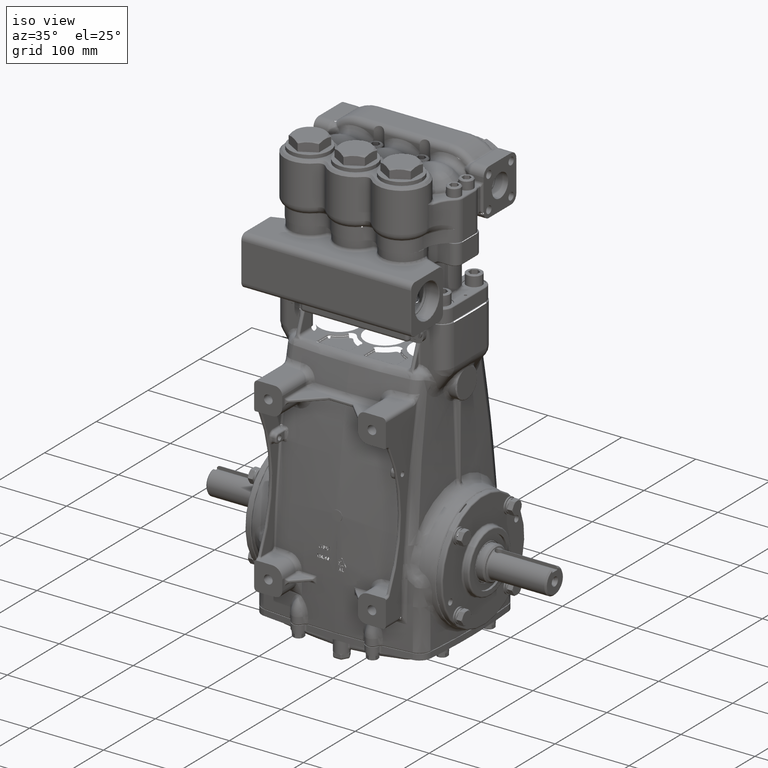
[diagram: clean part render]
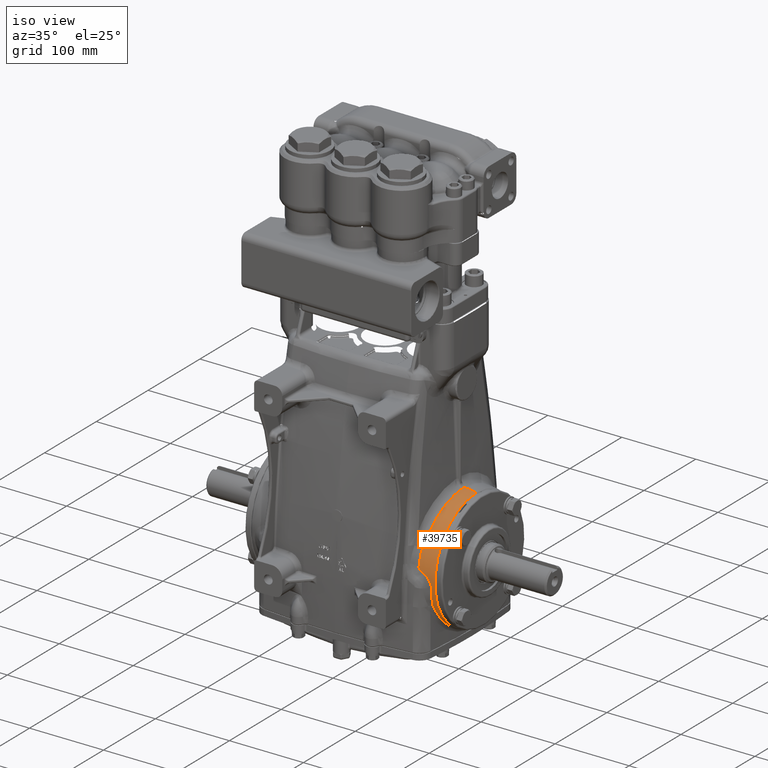
[diagram: same view with one face highlighted and labeled with its STEP entity id]
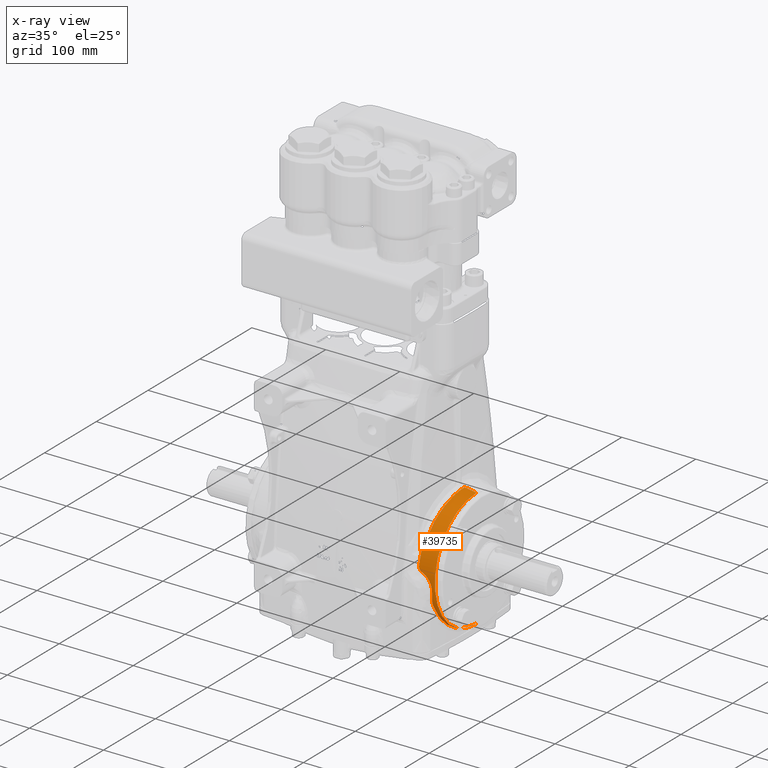
[diagram: x-ray of the same camera — body ghosted, the highlighted face saturated]
A machine part, iso view. The second image highlights one B-rep face of the part: STEP entity #39735.
The next image is the same camera in x-ray: the body ghosted, the highlighted face saturated — about 0% of this face is hidden behind the body in this view.
In plain terms, the highlighted toroidal blend (fillet) surface has major radius 710.174 mm and minor (blend) radius 800 mm.
Its self-contained STEP definition (entity closure, byte-faithful):
#765 = CARTESIAN_POINT ( 'NONE',  ( 4.059840737327628624, -3.014675423165702028, 1.277885004256982260 ) ) ;
#974 = CARTESIAN_POINT ( 'NONE',  ( 4.795392943022132037, -0.9920313528584013829, -3.013406244147627255 ) ) ;
#1049 = CARTESIAN_POINT ( 'NONE',  ( 4.476645519390706873, -3.208994383556206920, 0.2276715050428013698 ) ) ;
#4272 = CARTESIAN_POINT ( 'NONE',  ( 4.671995195232788944, -2.817595301799574514, -1.491509972633686898 ) ) ;
#4677 = ORIENTED_EDGE ( 'NONE', *, *, #109055, .F. ) ;
#4768 = CARTESIAN_POINT ( 'NONE',  ( -1.050220729719372817E-16, 0.0000000000000000000, 27.95960753795100473 ) ) ;
#5383 = VERTEX_POINT ( 'NONE', #26554 ) ;
#6572 = VERTEX_POINT ( 'NONE', #43786 ) ;
#8972 = ORIENTED_EDGE ( 'NONE', *, *, #74583, .F. ) ;
#10016 = B_SPLINE_CURVE_WITH_KNOTS ( 'NONE', 3,
 ( #108400, #45343, #87630, #129891, #34923, #77213, #119492, #24531 ),
 .UNSPECIFIED., .F., .F.,
 ( 4, 2, 2, 4 ),
 ( 0.0000000000000000000, 0.5000000000000000000, 0.7499999999999998890, 1.000000000000000000 ),
 .UNSPECIFIED. ) ;
#10351 = ORIENTED_EDGE ( 'NONE', *, *, #42324, .F. ) ;
#10721 = CARTESIAN_POINT ( 'NONE',  ( 4.240305217706549890, -0.2533055434038216092, 3.242258551654292553 ) ) ;
#11155 = CARTESIAN_POINT ( 'NONE',  ( 4.074960399868632344, -3.143860997543816982, 0.9148230346869269392 ) ) ;
#11360 = CARTESIAN_POINT ( 'NONE',  ( 4.811355340674883685, -0.2864910433851791671, -3.157124972228495086 ) ) ;
#11450 = CARTESIAN_POINT ( 'NONE',  ( 4.701623159952063702, -3.183729317627611355, -0.1365620709503548025 ) ) ;
#12034 = CARTESIAN_POINT ( 'NONE',  ( 4.671995195232788944, -2.817595301799574514, -1.491509972633686898 ) ) ;
#13006 = CARTESIAN_POINT ( 'NONE',  ( 4.240991282790828265, 4.693753063019659436E-11, 3.249621495888693978 ) ) ;
#14915 = CIRCLE ( 'NONE', #92434, 3.156962035488045437 ) ;
#19322 = ORIENTED_EDGE ( 'NONE', *, *, #54480, .F. ) ;
#21151 = CARTESIAN_POINT ( 'NONE',  ( 4.230583354813282959, -0.8709274565133807711, 3.134715635904268716 ) ) ;
#22456 = CARTESIAN_POINT ( 'NONE',  ( 4.701454750326896637, -2.506536445759398823, -1.967938369618047689 ) ) ;
#22626 = CARTESIAN_POINT ( 'NONE',  ( 4.146795280029016872, -2.739778042975806294, 1.784677835696039105 ) ) ;
#23155 = EDGE_CURVE ( 'NONE', #6572, #132223, #10016, .T. ) ;
#23341 = CARTESIAN_POINT ( 'NONE',  ( 5.568718060300463558E-15, 3.424064387676790698E-15, -27.95960753795100473 ) ) ;
#24011 = EDGE_CURVE ( 'NONE', #125979, #81088, #108869, .T. ) ;
#24531 = CARTESIAN_POINT ( 'NONE',  ( 4.068196207595590863, -3.204746991281274049, 0.6630307251519698131 ) ) ;
#26554 = CARTESIAN_POINT ( 'NONE',  ( 4.874534027504088485, -3.866163451790151959E-16, 3.156962035488049434 ) ) ;
#28631 = CARTESIAN_POINT ( 'NONE',  ( 4.712714316162791128, -3.132927912143915083, -0.5762095819734214253 ) ) ;
#30944 = VERTEX_POINT ( 'NONE', #80473 ) ;
#31579 = CARTESIAN_POINT ( 'NONE',  ( 4.216049932389253740, -1.346590706294731099, 2.963853008133497280 ) ) ;
#31878 = CARTESIAN_POINT ( 'NONE',  ( 4.812441923013113687, -1.481110120753864741E-07, -3.166625558008697272 ) ) ;
#32874 = CARTESIAN_POINT ( 'NONE',  ( 4.750268013655625232, -1.891747720313454284, -2.567528510850987988 ) ) ;
#34595 = ORIENTED_EDGE ( 'NONE', *, *, #124873, .F. ) ;
#34923 = CARTESIAN_POINT ( 'NONE',  ( 4.083574776814294260, -3.223938539801954217, 0.5512469625813745111 ) ) ;
#34987 = CARTESIAN_POINT ( 'NONE',  ( 4.713406592358675873, -3.169753574594053269, -0.2763370845249724650 ) ) ;
#37653 = ORIENTED_EDGE ( 'NONE', *, *, #24011, .F. ) ;
#38112 = DIRECTION ( 'NONE',  ( 1.730681562182256507E-16, 0.0000000000000000000, -1.000000000000000000 ) ) ;
#39033 = CARTESIAN_POINT ( 'NONE',  ( 4.635675277813445128, -3.027706349366337424, -1.018264804609938068 ) ) ;
#39735 = ADVANCED_FACE ( 'NONE', ( #103360 ), #118702, .T. ) ;
#39870 = CARTESIAN_POINT ( 'NONE',  ( 4.068196207595590863, -3.204746991281274049, 0.6630307251519698131 ) ) ;
#40046 = CIRCLE ( 'NONE', #117444, 31.49606299212598515 ) ;
#40324 = DIRECTION ( 'NONE',  ( 1.014631576207059362E-16, 0.0000000000000000000, -1.000000000000000000 ) ) ;
#41081 = B_SPLINE_CURVE_WITH_KNOTS ( 'NONE', 3,
 ( #63857, #106144, #11155, #53466, #95750, #765, #43101, #85355 ),
 .UNSPECIFIED., .F., .F.,
 ( 4, 2, 2, 4 ),
 ( 0.0000000000000000000, 0.4999999999999998890, 0.7499999999999998890, 1.000000000000000000 ),
 .UNSPECIFIED. ) ;
#41655 = CARTESIAN_POINT ( 'NONE',  ( 4.637802879207589157, -2.974517227941448461, -1.161161906720954651 ) ) ;
#42004 = CARTESIAN_POINT ( 'NONE',  ( 4.172413239403286234, -2.282509996542392283, 2.339665665247994131 ) ) ;
#42324 = EDGE_CURVE ( 'NONE', #107001, #67450, #55665, .T. ) ;
#43101 = CARTESIAN_POINT ( 'NONE',  ( 4.062115507457966679, -2.988712625195999451, 1.336762948548139152 ) ) ;
#43300 = CARTESIAN_POINT ( 'NONE',  ( 4.790303181778289954, -1.127149556421079390, -2.966354360120121214 ) ) ;
#43377 = CARTESIAN_POINT ( 'NONE',  ( 4.367240834308786290, -3.216752620590586087, 0.3194208989799462994 ) ) ;
#43786 = CARTESIAN_POINT ( 'NONE',  ( 4.241293303835878881, -3.226001539249478522, 0.3907520896382901676 ) ) ;
#43927 = ORIENTED_EDGE ( 'NONE', *, *, #23155, .F. ) ;
#45343 = CARTESIAN_POINT ( 'NONE',  ( 4.189968773506881128, -3.229987173090322017, 0.4158523669530884703 ) ) ;
#47089 = DIRECTION ( 'NONE',  ( 0.0000000000000000000, 1.000000000000000000, 0.0000000000000000000 ) ) ;
#52037 = CARTESIAN_POINT ( 'NONE',  ( 4.671995195232788944, -2.817595301799574514, -1.491509972633686898 ) ) ;
#53050 = CARTESIAN_POINT ( 'NONE',  ( 4.240991227555344523, -0.1264003216158212650, 3.249621060336789657 ) ) ;
#53466 = CARTESIAN_POINT ( 'NONE',  ( 4.065177188191593238, -3.083984889762754644, 1.098068107524425852 ) ) ;
#53675 = CARTESIAN_POINT ( 'NONE',  ( 4.806998052755426798, -0.5733832258980167129, -3.118500223422494333 ) ) ;
#53759 = CARTESIAN_POINT ( 'NONE',  ( 4.650113480402072064, -3.193484163472381177, 0.0007540518981901967463 ) ) ;
#54480 = EDGE_CURVE ( 'NONE', #106834, #90456, #40046, .T. ) ;
#55665 = B_SPLINE_CURVE_WITH_KNOTS ( 'NONE', 3,
 ( #52037, #94320, #136586, #41655 ),
 .UNSPECIFIED., .F., .F.,
 ( 4, 4 ),
 ( 0.0000000000000000000, 1.000000000000000000 ),
 .UNSPECIFIED. ) ;
#62624 = CARTESIAN_POINT ( 'NONE',  ( 4.874534027504089373, 0.0000000000000000000, -3.156962035488048102 ) ) ;
#63442 = CARTESIAN_POINT ( 'NONE',  ( 4.235682771569069693, -0.6266466288404147766, 3.191829271269768231 ) ) ;
#63446 = B_SPLINE_CURVE_WITH_KNOTS ( 'NONE', 3,
 ( #106433, #11450, #53759, #96038, #1049, #43377, #85646, #127906 ),
 .UNSPECIFIED., .F., .F.,
 ( 4, 2, 2, 4 ),
 ( 0.0000000000000000000, 0.4999999999999998890, 0.7500000000000000000, 1.000000000000000000 ),
 .UNSPECIFIED. ) ;
#63857 = CARTESIAN_POINT ( 'NONE',  ( 4.068196207595590863, -3.204746991281274049, 0.6630307251519698131 ) ) ;
#64083 = CARTESIAN_POINT ( 'NONE',  ( 4.812441923013113687, -1.481110120753864741E-07, -3.166625558008697272 ) ) ;
#64743 = CARTESIAN_POINT ( 'NONE',  ( 4.686071756050094628, -2.674197270636395007, -1.737510335107369741 ) ) ;
#64907 = CARTESIAN_POINT ( 'NONE',  ( 4.154195439504829501, -2.605888995820426324, 1.960963033933472488 ) ) ;
#65404 = ORIENTED_EDGE ( 'NONE', *, *, #77496, .F. ) ;
#65626 = DIRECTION ( 'NONE',  ( 1.242565312115808949E-32, -1.000000000000000000, -1.224646799147353207E-16 ) ) ;
#67450 = VERTEX_POINT ( 'NONE', #130617 ) ;
#68330 = VERTEX_POINT ( 'NONE', #34987 ) ;
#69895 = B_SPLINE_CURVE_WITH_KNOTS ( 'NONE', 3,
 ( #91721, #133972, #39033, #81298, #123561, #28631, #70902, #113164 ),
 .UNSPECIFIED., .F., .F.,
 ( 4, 2, 2, 4 ),
 ( 0.0000000000000000000, 0.2500000000000000000, 0.5000000000000000000, 1.000000000000000000 ),
 .UNSPECIFIED. ) ;
#70902 = CARTESIAN_POINT ( 'NONE',  ( 4.726144590640167564, -3.154645668425971827, -0.4274351538967189890 ) ) ;
#73837 = CARTESIAN_POINT ( 'NONE',  ( 4.220173851410993215, -1.229921036881801433, 3.013587734413658570 ) ) ;
#74583 = EDGE_CURVE ( 'NONE', #90456, #107001, #93640, .T. ) ;
#75142 = CARTESIAN_POINT ( 'NONE',  ( 4.734056748507328827, -2.115109540578937963, -2.390187588732937574 ) ) ;
#75299 = CARTESIAN_POINT ( 'NONE',  ( 4.073807278298714252, -2.959947933500720829, 1.394250575635964218 ) ) ;
#76953 = EDGE_LOOP ( 'NONE', ( #104346, #113500, #37653, #4677, #34595, #43927, #94936, #65404, #10351, #8972, #19322 ) ) ;
#77213 = CARTESIAN_POINT ( 'NONE',  ( 4.068598189055826708, -3.216070234104933867, 0.6060814687319485694 ) ) ;
#77496 = EDGE_CURVE ( 'NONE', #67450, #68330, #69895, .T. ) ;
#80473 = CARTESIAN_POINT ( 'NONE',  ( 4.073807278298714252, -2.959947933500720829, 1.394250575635964218 ) ) ;
#81088 = VERTEX_POINT ( 'NONE', #13006 ) ;
#81298 = CARTESIAN_POINT ( 'NONE',  ( 4.659041407288404990, -3.069411880862395581, -0.8719676970051276621 ) ) ;
#82558 = EDGE_CURVE ( 'NONE', #5383, #81088, #87319, .T. ) ;
#84268 = CARTESIAN_POINT ( 'NONE',  ( 4.192740757286638420, -1.893362396004754089, 2.661075382058560646 ) ) ;
#84647 = EDGE_CURVE ( 'NONE', #5383, #106834, #14915, .T. ) ;
#85355 = CARTESIAN_POINT ( 'NONE',  ( 4.073807278298714252, -2.959947933500720829, 1.394250575635964218 ) ) ;
#85566 = CARTESIAN_POINT ( 'NONE',  ( 4.778555225248720895, -1.391094182752331765, -2.854125396673355741 ) ) ;
#85646 = CARTESIAN_POINT ( 'NONE',  ( 4.306769883665692689, -3.220916920437658870, 0.3587307481807804899 ) ) ;
#87319 = CIRCLE ( 'NONE', #105014, 31.49606299212598515 ) ;
#87630 = CARTESIAN_POINT ( 'NONE',  ( 4.143842590774164947, -3.231423251180023382, 0.4531311649784011686 ) ) ;
#88030 = EDGE_CURVE ( 'NONE', #68330, #6572, #63446, .T. ) ;
#89376 = DIRECTION ( 'NONE',  ( 0.0000000000000000000, 0.0000000000000000000, 1.000000000000000000 ) ) ;
#90456 = VERTEX_POINT ( 'NONE', #31878 ) ;
#90802 = CARTESIAN_POINT ( 'NONE',  ( 4.874534027504088485, 0.0000000000000000000, 4.945856143601376801E-16 ) ) ;
#91721 = CARTESIAN_POINT ( 'NONE',  ( 4.637802879207589157, -2.974517227941448461, -1.161161906720954651 ) ) ;
#92434 = AXIS2_PLACEMENT_3D ( 'NONE', #90802, #133052, #38112 ) ;
#93000 = CARTESIAN_POINT ( 'NONE',  ( 2.731847993664263218E-15, 0.0000000000000000000, 0.0000000000000000000 ) ) ;
#93640 = B_SPLINE_CURVE_WITH_KNOTS ( 'NONE', 3,
 ( #64083, #106351, #11360, #53675, #95955, #974, #43300, #85566, #127820, #32874, #75142, #117421, #22456, #64743, #107017, #12034 ),
 .UNSPECIFIED., .F., .F.,
 ( 4, 2, 2, 2, 2, 2, 2, 4 ),
 ( 0.5000483756456942652, 0.5624999999999996669, 0.6249999999999996669, 0.6874999999999996669, 0.7499999999999997780, 0.8749999999999997780, 0.9375000000000000000, 1.000000000000000000 ),
 .UNSPECIFIED. ) ;
#94320 = CARTESIAN_POINT ( 'NONE',  ( 4.666255815391464168, -2.875076720657021578, -1.384762528334551934 ) ) ;
#94651 = CARTESIAN_POINT ( 'NONE',  ( 4.154195439504829501, -2.605888995820426324, 1.960963033933472488 ) ) ;
#94936 = ORIENTED_EDGE ( 'NONE', *, *, #88030, .F. ) ;
#95333 = CARTESIAN_POINT ( 'NONE',  ( 4.240991282790828265, 4.693753063019659436E-11, 3.249621495888693978 ) ) ;
#95750 = CARTESIAN_POINT ( 'NONE',  ( 4.061345028220673115, -3.062310547445739051, 1.158547218389684108 ) ) ;
#95955 = CARTESIAN_POINT ( 'NONE',  ( 4.803734397380607035, -0.7155610294733516508, -3.089427977752311705 ) ) ;
#96038 = CARTESIAN_POINT ( 'NONE',  ( 4.526293261852023520, -3.205334629084368725, 0.1742590804353988387 ) ) ;
#101210 = CARTESIAN_POINT ( 'NONE',  ( 4.154195439504829501, -2.605888995820426324, 1.960963033933472488 ) ) ;
#103360 = FACE_OUTER_BOUND ( 'NONE', #76953, .T. ) ;
#104346 = ORIENTED_EDGE ( 'NONE', *, *, #84647, .F. ) ;
#105014 = AXIS2_PLACEMENT_3D ( 'NONE', #23341, #65626, #107893 ) ;
#105717 = CARTESIAN_POINT ( 'NONE',  ( 4.237652013864519951, -0.5030473467529149589, 3.213374542601915795 ) ) ;
#106144 = CARTESIAN_POINT ( 'NONE',  ( 4.078678006966289793, -3.177020150542402277, 0.7903088960410987740 ) ) ;
#106351 = CARTESIAN_POINT ( 'NONE',  ( 4.812441922088052770, -0.1431869754493966251, -3.166625618446515134 ) ) ;
#106433 = CARTESIAN_POINT ( 'NONE',  ( 4.713406592358675873, -3.169753574594053269, -0.2763370845249724650 ) ) ;
#106834 = VERTEX_POINT ( 'NONE', #62624 ) ;
#107001 = VERTEX_POINT ( 'NONE', #4272 ) ;
#107017 = CARTESIAN_POINT ( 'NONE',  ( 4.678748902777146945, -2.749955120518025264, -1.617123025120611901 ) ) ;
#107893 = DIRECTION ( 'NONE',  ( 0.0000000000000000000, 1.224646799147353454E-16, -1.000000000000000000 ) ) ;
#108400 = CARTESIAN_POINT ( 'NONE',  ( 4.241293303835878881, -3.226001539249478522, 0.3907520896382901676 ) ) ;
#108869 = B_SPLINE_CURVE_WITH_KNOTS ( 'NONE', 3,
 ( #94651, #136933, #42004, #84268, #126529, #31579, #73837, #116128, #21151, #63442, #105717, #10721, #53050, #95333 ),
 .UNSPECIFIED., .F., .F.,
 ( 4, 2, 2, 2, 2, 2, 4 ),
 ( 0.0000000000000000000, 0.1250000000000001665, 0.2500000000000002776, 0.3125000000000003331, 0.3750000000000003886, 0.4375000000000003886, 0.4998300329576842449 ),
 .UNSPECIFIED. ) ;
#109055 = EDGE_CURVE ( 'NONE', #30944, #125979, #111031, .T. ) ;
#111031 = B_SPLINE_CURVE_WITH_KNOTS ( 'NONE', 3,
 ( #75299, #117581, #22626, #64907 ),
 .UNSPECIFIED., .F., .F.,
 ( 4, 4 ),
 ( 0.0000000000000000000, 1.000000000000000000 ),
 .UNSPECIFIED. ) ;
#113164 = CARTESIAN_POINT ( 'NONE',  ( 4.713406592358675873, -3.169753574594053269, -0.2763370845249724650 ) ) ;
#113500 = ORIENTED_EDGE ( 'NONE', *, *, #82558, .T. ) ;
#116128 = CARTESIAN_POINT ( 'NONE',  ( 4.227452895496238483, -0.9916091823206050204, 3.099148475327404118 ) ) ;
#117421 = CARTESIAN_POINT ( 'NONE',  ( 4.709561670205832939, -2.414074059703260833, -2.078551350158719835 ) ) ;
#117444 = AXIS2_PLACEMENT_3D ( 'NONE', #4768, #47089, #89376 ) ;
#117581 = CARTESIAN_POINT ( 'NONE',  ( 4.114205068007505517, -2.860559231075403996, 1.592883702391712397 ) ) ;
#118702 = TOROIDAL_SURFACE ( 'NONE', #136463, -27.95960753795100473, 31.49606299212598515 ) ;
#119492 = CARTESIAN_POINT ( 'NONE',  ( 4.065899536981142148, -3.210822228740024542, 0.6351427620540452956 ) ) ;
#123561 = CARTESIAN_POINT ( 'NONE',  ( 4.674638175687860553, -3.086997047895380319, -0.7981781258625720854 ) ) ;
#124873 = EDGE_CURVE ( 'NONE', #132223, #30944, #41081, .T. ) ;
#125979 = VERTEX_POINT ( 'NONE', #101210 ) ;
#126529 = CARTESIAN_POINT ( 'NONE',  ( 4.202810139903888853, -1.683555856827035235, 2.796809853205855845 ) ) ;
#127820 = CARTESIAN_POINT ( 'NONE',  ( 4.771837944189591951, -1.520853784674521147, -2.788342514089747759 ) ) ;
#127906 = CARTESIAN_POINT ( 'NONE',  ( 4.241293303835878881, -3.226001539249478522, 0.3907520896382901676 ) ) ;
#129891 = CARTESIAN_POINT ( 'NONE',  ( 4.095643959304354098, -3.226644982486874813, 0.5252720837617583793 ) ) ;
#130617 = CARTESIAN_POINT ( 'NONE',  ( 4.637802879207589157, -2.974517227941448461, -1.161161906720954651 ) ) ;
#132223 = VERTEX_POINT ( 'NONE', #39870 ) ;
#133052 = DIRECTION ( 'NONE',  ( 1.000000000000000000, -0.0000000000000000000, 1.014631576207051350E-16 ) ) ;
#133972 = CARTESIAN_POINT ( 'NONE',  ( 4.627811670758023688, -3.003579151184962548, -1.090805080114700454 ) ) ;
#135266 = DIRECTION ( 'NONE',  ( -1.000000000000000000, 0.0000000000000000000, -1.014631576207059362E-16 ) ) ;
#136463 = AXIS2_PLACEMENT_3D ( 'NONE', #93000, #135266, #40324 ) ;
#136586 = CARTESIAN_POINT ( 'NONE',  ( 4.653840769993426996, -2.927867021512045032, -1.274098702111998715 ) ) ;
#136933 = CARTESIAN_POINT ( 'NONE',  ( 4.162494047696327470, -2.455744562737092185, 2.158650908438247917 ) ) ;